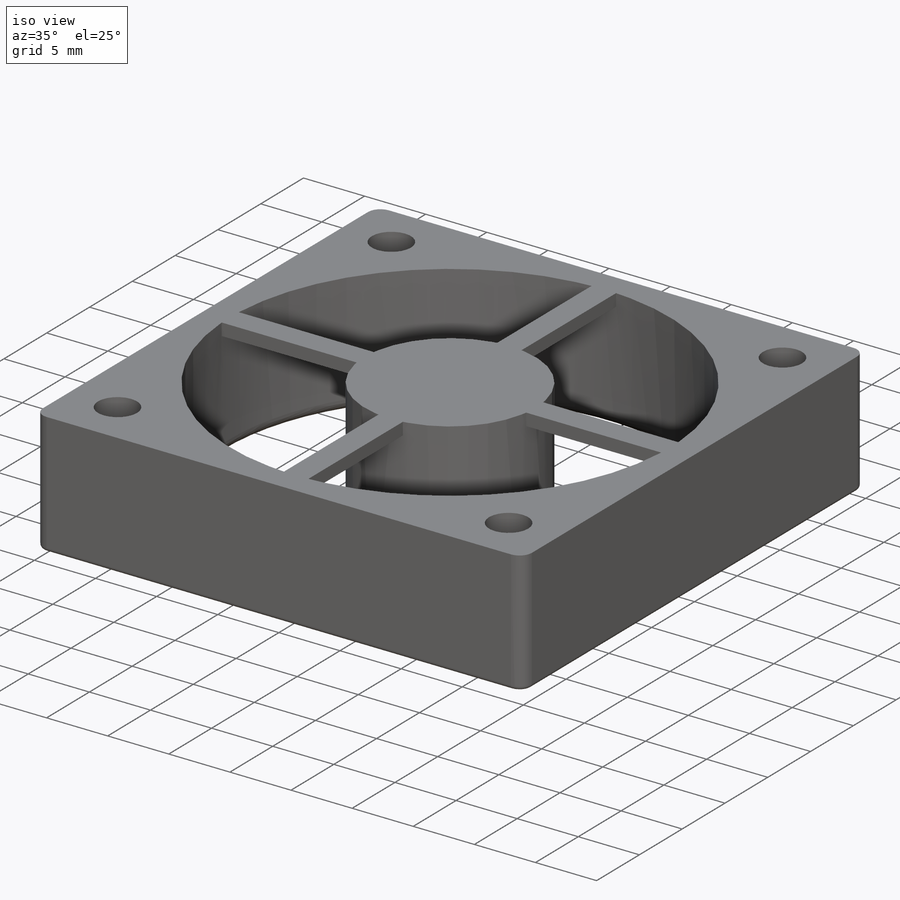
[diagram: iso view]
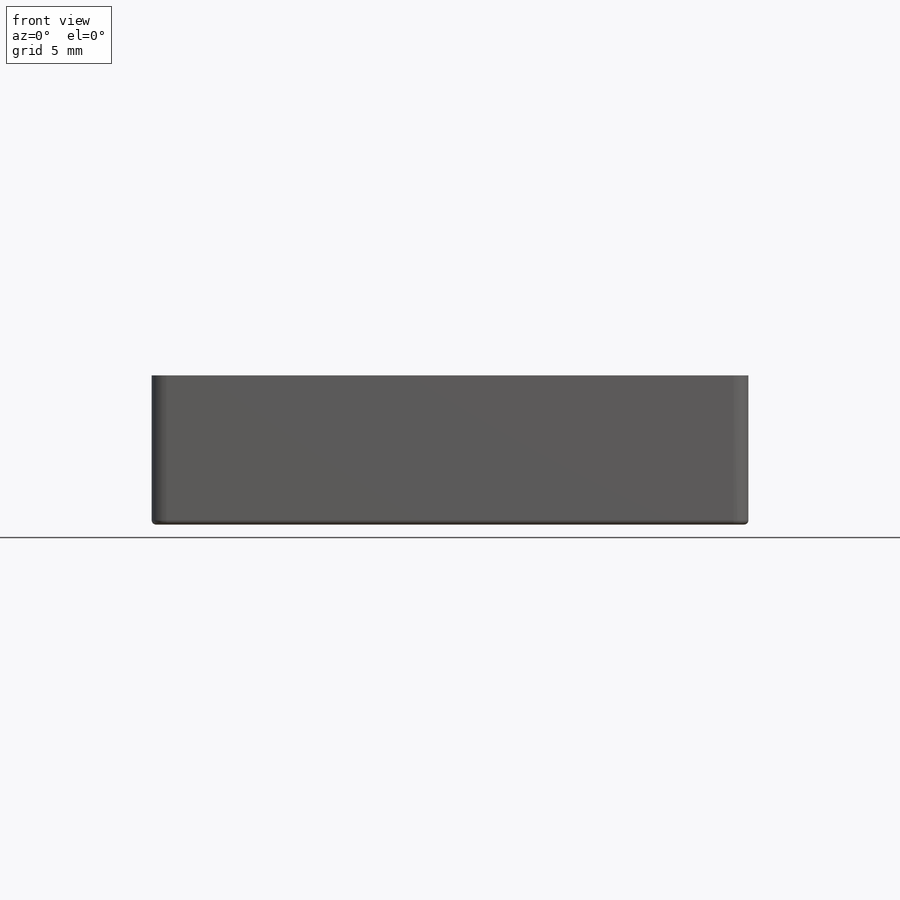
[diagram: front view]
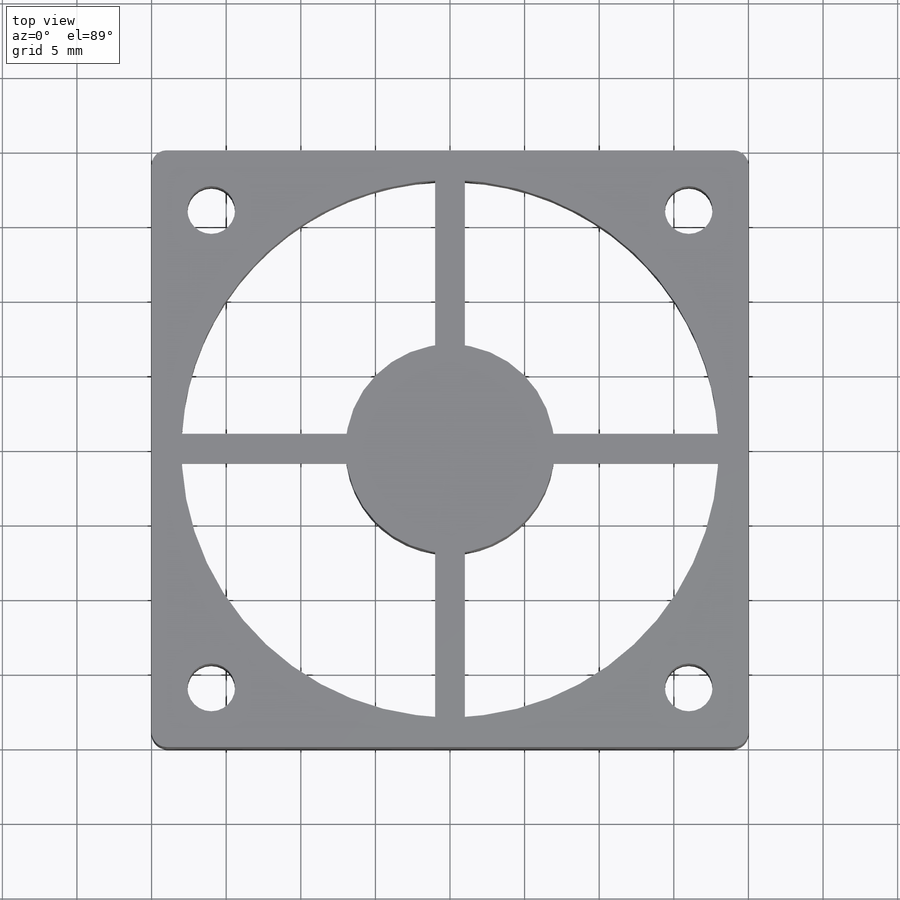
[diagram: top view]
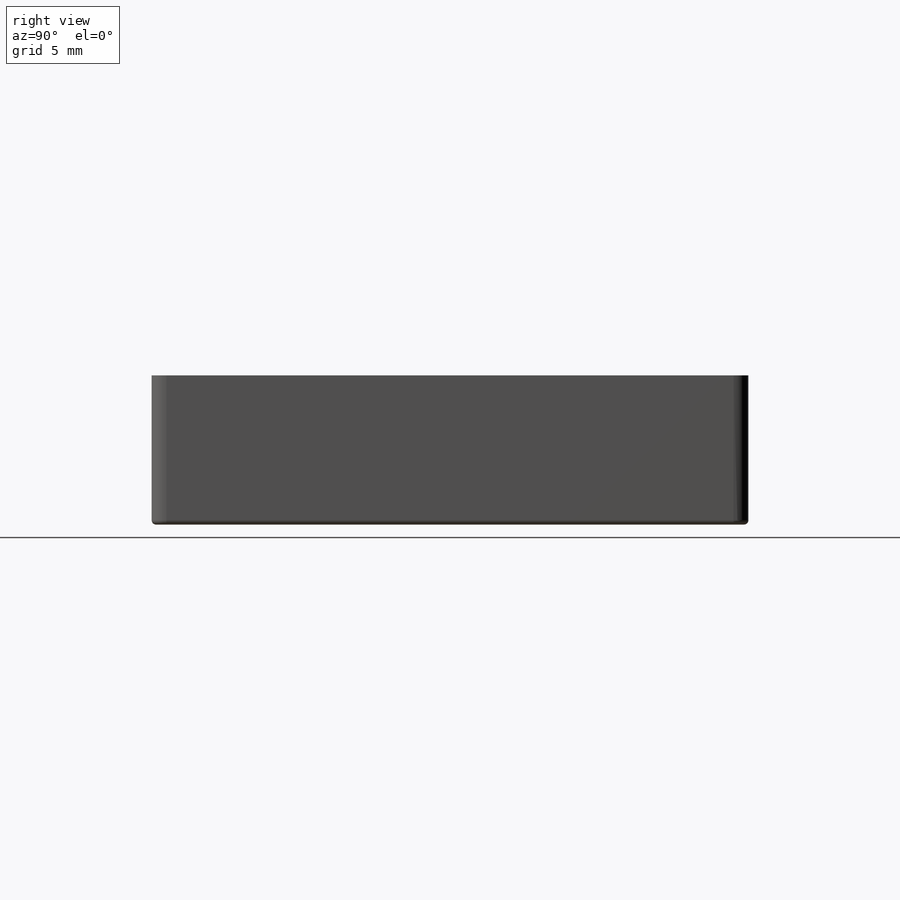
[diagram: right view]
SOLIDWORKS PART (.sldprt)
format: sldprt  version: not decoded by parser v0  size: 277,504 bytes
history: native  units: mm
features: sketch x4, fillet x4, extrude x2, cut_extrude x2, material x1 (+11 scaffold rows collapsed)
feature tree (24):
  scaffold x11  (default folders/planes/origin — collapsed)
  material  "Material <not specified>"
  sketch  "Sketch1"  dims[D1=40.0mm D2=40.0mm]
  extrude  "Boss-Extrude1"  Depth=10mm
  fillet  "Fillet1"  Radius=1mm
  sketch  "Sketch2"  dims[D1=36.0mm D2=14.0mm]
  cut_extrude  "Cut-Extrude2"  Depth=10mm
  sketch  "Sketch3"  dims[D1=3.2mm D2=3.2mm D3=3.2mm D4=3.2mm D5=4.0mm D6=4.0mm D7=4.0mm D8=4.0mm D9=4.0mm D10=4.0mm D11=4.0mm D12=4.0mm]
  cut_extrude  "Cut-Extrude3"  [1 undecoded]
  sketch  "Sketch7"  dims[D1=2.0mm D2=2.0mm D3=19.0mm D4=19.0mm]
  extrude  "Boss-Extrude2"  Depth=1mm
  fillet  "Fillet2"  Radius=1mm
  fillet  "Fillet3"  Radius=1mm
  fillet  "Fillet4"  Radius=0.3mm
decode coverage: 11 of 12 modeling features carry decoded parameters
note: 1 parameter value undecoded
note: suppression state not decoded; provenance and decode notes live in map.json
